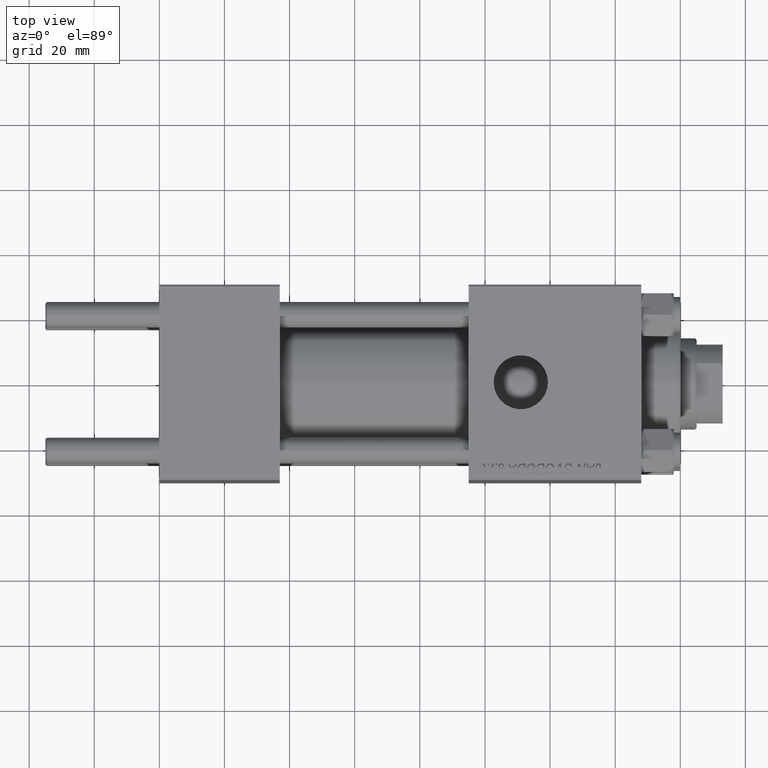
[diagram: clean part render]
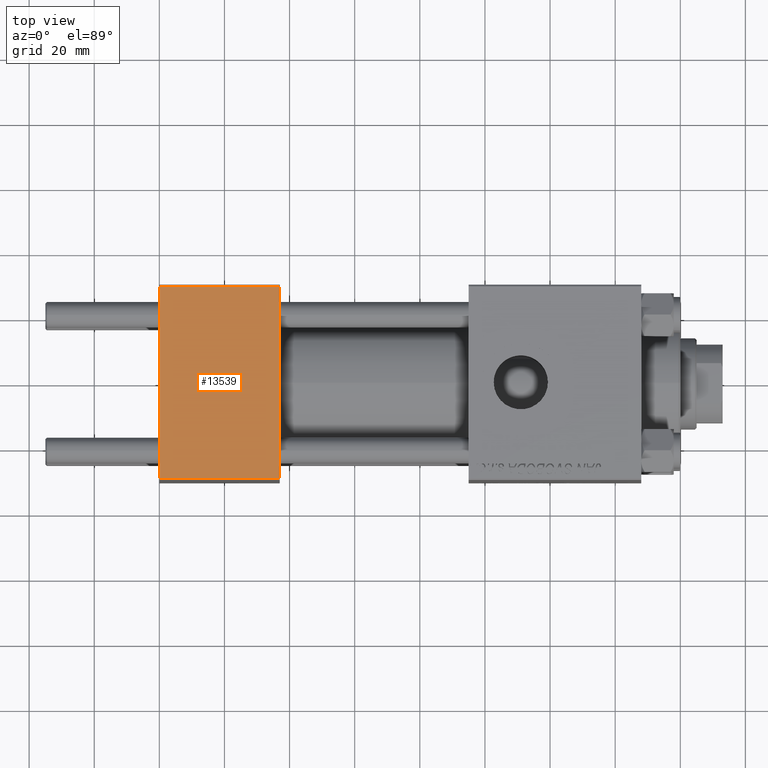
[diagram: same view with one face highlighted and labeled with its STEP entity id]
A machine part, top view. The second image highlights one B-rep face of the part: STEP entity #13539.
In plain terms, the highlighted planar face has unit normal (0, 0, -1).
Its self-contained STEP definition (entity closure, byte-faithful):
#650 = CARTESIAN_POINT ( 'NONE',  ( 37.00000000000000000, 29.99999999999999289, 30.00000000000000000 ) ) ;
#1371 = CARTESIAN_POINT ( 'NONE',  ( 37.00000000000000000, 29.99999999999999289, 30.00000000000000000 ) ) ;
#1835 = VERTEX_POINT ( 'NONE', #44690 ) ;
#4171 = PLANE ( 'NONE',  #26888 ) ;
#5462 = VECTOR ( 'NONE', #45316, 1000.000000000000000 ) ;
#7721 = DIRECTION ( 'NONE',  ( 0.000000000000000000, 1.156482317317871725E-16, -1.000000000000000000 ) ) ;
#8866 = ORIENTED_EDGE ( 'NONE', *, *, #38349, .T. ) ;
#10056 = VECTOR ( 'NONE', #24026, 1000.000000000000000 ) ;
#11830 = VECTOR ( 'NONE', #39909, 1000.000000000000000 ) ;
#11878 = CARTESIAN_POINT ( 'NONE',  ( 37.00000000000000000, 29.49999999999999289, 30.00000000000000000 ) ) ;
#12679 = LINE ( 'NONE', #20745, #11830 ) ;
#13324 = VECTOR ( 'NONE', #32630, 1000.000000000000000 ) ;
#13539 = ADVANCED_FACE ( 'NONE', ( #22855 ), #4171, .F. ) ;
#20745 = CARTESIAN_POINT ( 'NONE',  ( 37.00000000000000000, -29.50000000000000000, 29.99999999999999289 ) ) ;
#21992 = CARTESIAN_POINT ( 'NONE',  ( 0.000000000000000000, 29.49999999999999289, 30.00000000000000000 ) ) ;
#22855 = FACE_OUTER_BOUND ( 'NONE', #49092, .T. ) ;
#23117 = CARTESIAN_POINT ( 'NONE',  ( 0.000000000000000000, 29.49999999999999289, 30.00000000000000000 ) ) ;
#24026 = DIRECTION ( 'NONE',  ( 0.000000000000000000, -1.000000000000000000, -1.156482317317871725E-16 ) ) ;
#24187 = EDGE_CURVE ( 'NONE', #47654, #34881, #46071, .T. ) ;
#24867 = EDGE_CURVE ( 'NONE', #49654, #1835, #12679, .T. ) ;
#26215 = ORIENTED_EDGE ( 'NONE', *, *, #24187, .T. ) ;
#26888 = AXIS2_PLACEMENT_3D ( 'NONE', #650, #7721, #38243 ) ;
#28791 = ORIENTED_EDGE ( 'NONE', *, *, #24867, .T. ) ;
#32630 = DIRECTION ( 'NONE',  ( 0.000000000000000000, -1.000000000000000000, -1.156482317317871725E-16 ) ) ;
#34881 = VERTEX_POINT ( 'NONE', #21992 ) ;
#35930 = LINE ( 'NONE', #1371, #13324 ) ;
#37501 = CARTESIAN_POINT ( 'NONE',  ( 0.000000000000000000, -29.49999999999998579, 29.99999999999999289 ) ) ;
#38243 = DIRECTION ( 'NONE',  ( 0.000000000000000000, 1.000000000000000000, 1.156482317317871725E-16 ) ) ;
#38349 = EDGE_CURVE ( 'NONE', #34881, #49654, #43198, .T. ) ;
#39456 = EDGE_CURVE ( 'NONE', #47654, #1835, #35930, .T. ) ;
#39909 = DIRECTION ( 'NONE',  ( 1.000000000000000000, 0.000000000000000000, 0.000000000000000000 ) ) ;
#41685 = ORIENTED_EDGE ( 'NONE', *, *, #39456, .F. ) ;
#43198 = LINE ( 'NONE', #46226, #10056 ) ;
#44690 = CARTESIAN_POINT ( 'NONE',  ( 37.00000000000000000, -29.49999999999998579, 29.99999999999999289 ) ) ;
#45316 = DIRECTION ( 'NONE',  ( -1.000000000000000000, 0.000000000000000000, 0.000000000000000000 ) ) ;
#46071 = LINE ( 'NONE', #23117, #5462 ) ;
#46226 = CARTESIAN_POINT ( 'NONE',  ( 0.000000000000000000, 29.99999999999999289, 30.00000000000000000 ) ) ;
#47654 = VERTEX_POINT ( 'NONE', #11878 ) ;
#49092 = EDGE_LOOP ( 'NONE', ( #8866, #28791, #41685, #26215 ) ) ;
#49654 = VERTEX_POINT ( 'NONE', #37501 ) ;